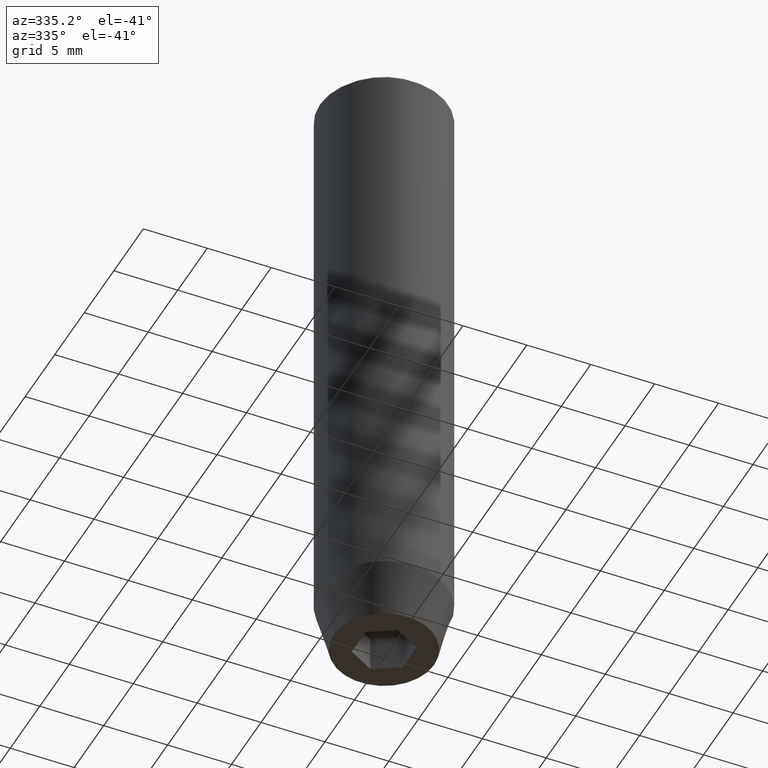
[diagram: clean part render]
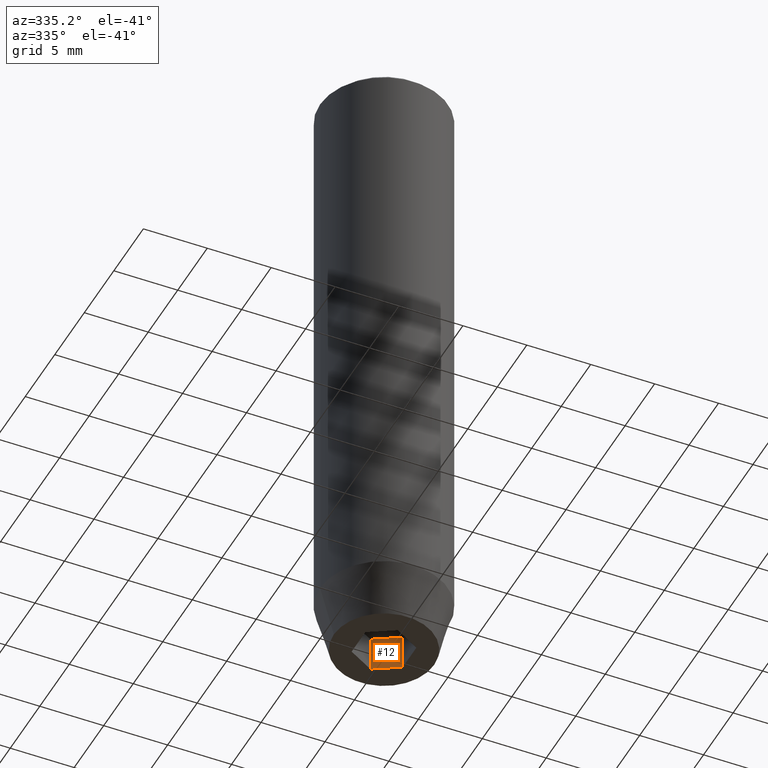
[diagram: same view with one face highlighted and labeled with its STEP entity id]
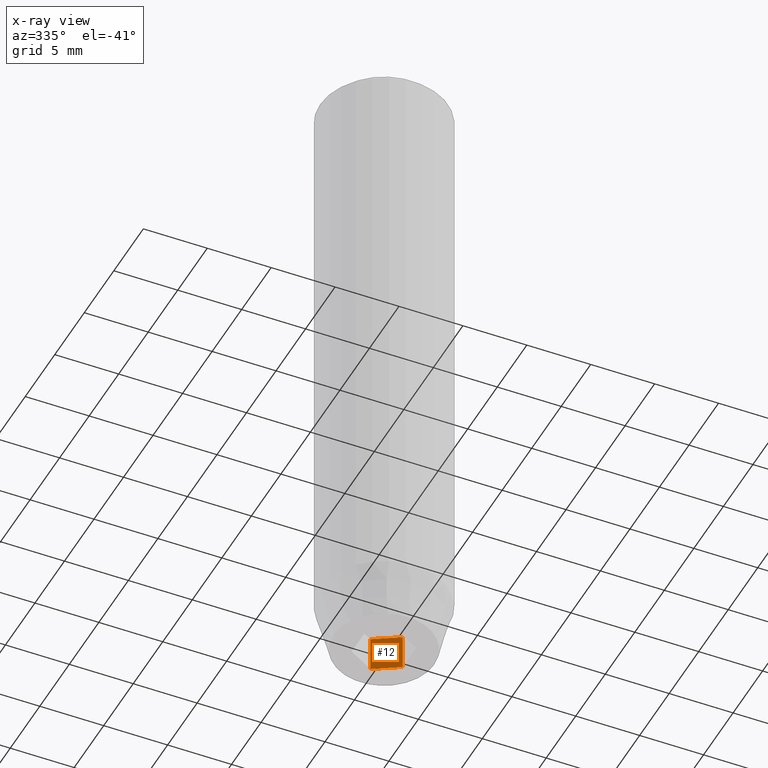
[diagram: x-ray of the same camera — body ghosted, the highlighted face saturated]
A machine part, auxiliary view. The second image highlights one B-rep face of the part: STEP entity #12.
The next image is the same camera in x-ray: the body ghosted, the highlighted face saturated — about 0% of this face is hidden behind the body in this view.
In plain terms, the highlighted planar face has unit normal (0.5, 0.866, -0).
Its self-contained STEP definition (entity closure, byte-faithful):
#2 = LINE ( 'NONE', #177, #182 ) ;
#6 = AXIS2_PLACEMENT_3D ( 'NONE', #488, #83, #267 ) ;
#12 = ADVANCED_FACE ( 'NONE', ( #63 ), #222, .F. ) ;
#57 = VERTEX_POINT ( 'NONE', #538 ) ;
#60 = DIRECTION ( 'NONE',  ( 0.8660254037844385966, -0.5000000000000001110, 0.000000000000000000 ) ) ;
#61 = EDGE_LOOP ( 'NONE', ( #508, #66, #411, #456 ) ) ;
#62 = CARTESIAN_POINT ( 'NONE',  ( 1.000000000000000444, 1.732050807568877637, -50.00000000000000000 ) ) ;
#63 = FACE_OUTER_BOUND ( 'NONE', #61, .T. ) ;
#66 = ORIENTED_EDGE ( 'NONE', *, *, #224, .F. ) ;
#71 = VERTEX_POINT ( 'NONE', #126 ) ;
#83 = DIRECTION ( 'NONE',  ( 0.5000000000000001110, 0.8660254037844385966, -0.000000000000000000 ) ) ;
#123 = DIRECTION ( 'NONE',  ( -0.000000000000000000, -0.000000000000000000, -1.000000000000000000 ) ) ;
#126 = CARTESIAN_POINT ( 'NONE',  ( 2.000000000000000888, 1.154700538379251462, -47.20000000000000284 ) ) ;
#143 = CARTESIAN_POINT ( 'NONE',  ( 2.000000000000000888, 1.154700538379251462, -47.20000000000000284 ) ) ;
#177 = CARTESIAN_POINT ( 'NONE',  ( 1.000000000000000444, 1.732050807568877637, -47.20000000000000284 ) ) ;
#182 = VECTOR ( 'NONE', #217, 1000.000000000000000 ) ;
#190 = VERTEX_POINT ( 'NONE', #279 ) ;
#217 = DIRECTION ( 'NONE',  ( 0.8660254037844385966, -0.5000000000000001110, 0.000000000000000000 ) ) ;
#222 = PLANE ( 'NONE',  #6 ) ;
#224 = EDGE_CURVE ( 'NONE', #71, #469, #367, .T. ) ;
#267 = DIRECTION ( 'NONE',  ( -0.8660254037844385966, 0.5000000000000001110, 0.000000000000000000 ) ) ;
#279 = CARTESIAN_POINT ( 'NONE',  ( 0.000000000000000000, 2.309401076758503812, -47.20000000000000284 ) ) ;
#317 = CARTESIAN_POINT ( 'NONE',  ( 0.000000000000000000, 2.309401076758503812, -47.20000000000000284 ) ) ;
#327 = EDGE_CURVE ( 'NONE', #190, #71, #2, .T. ) ;
#332 = LINE ( 'NONE', #62, #393 ) ;
#366 = EDGE_CURVE ( 'NONE', #190, #57, #448, .T. ) ;
#367 = LINE ( 'NONE', #143, #439 ) ;
#393 = VECTOR ( 'NONE', #60, 1000.000000000000000 ) ;
#411 = ORIENTED_EDGE ( 'NONE', *, *, #327, .F. ) ;
#439 = VECTOR ( 'NONE', #544, 1000.000000000000000 ) ;
#448 = LINE ( 'NONE', #317, #506 ) ;
#456 = ORIENTED_EDGE ( 'NONE', *, *, #366, .T. ) ;
#462 = EDGE_CURVE ( 'NONE', #57, #469, #332, .T. ) ;
#469 = VERTEX_POINT ( 'NONE', #568 ) ;
#488 = CARTESIAN_POINT ( 'NONE',  ( 1.000000000000000444, 1.732050807568877637, -47.20000000000000284 ) ) ;
#506 = VECTOR ( 'NONE', #123, 1000.000000000000000 ) ;
#508 = ORIENTED_EDGE ( 'NONE', *, *, #462, .T. ) ;
#538 = CARTESIAN_POINT ( 'NONE',  ( 0.000000000000000000, 2.309401076758503812, -50.00000000000000000 ) ) ;
#544 = DIRECTION ( 'NONE',  ( -0.000000000000000000, -0.000000000000000000, -1.000000000000000000 ) ) ;
#568 = CARTESIAN_POINT ( 'NONE',  ( 2.000000000000000888, 1.154700538379251462, -50.00000000000000000 ) ) ;